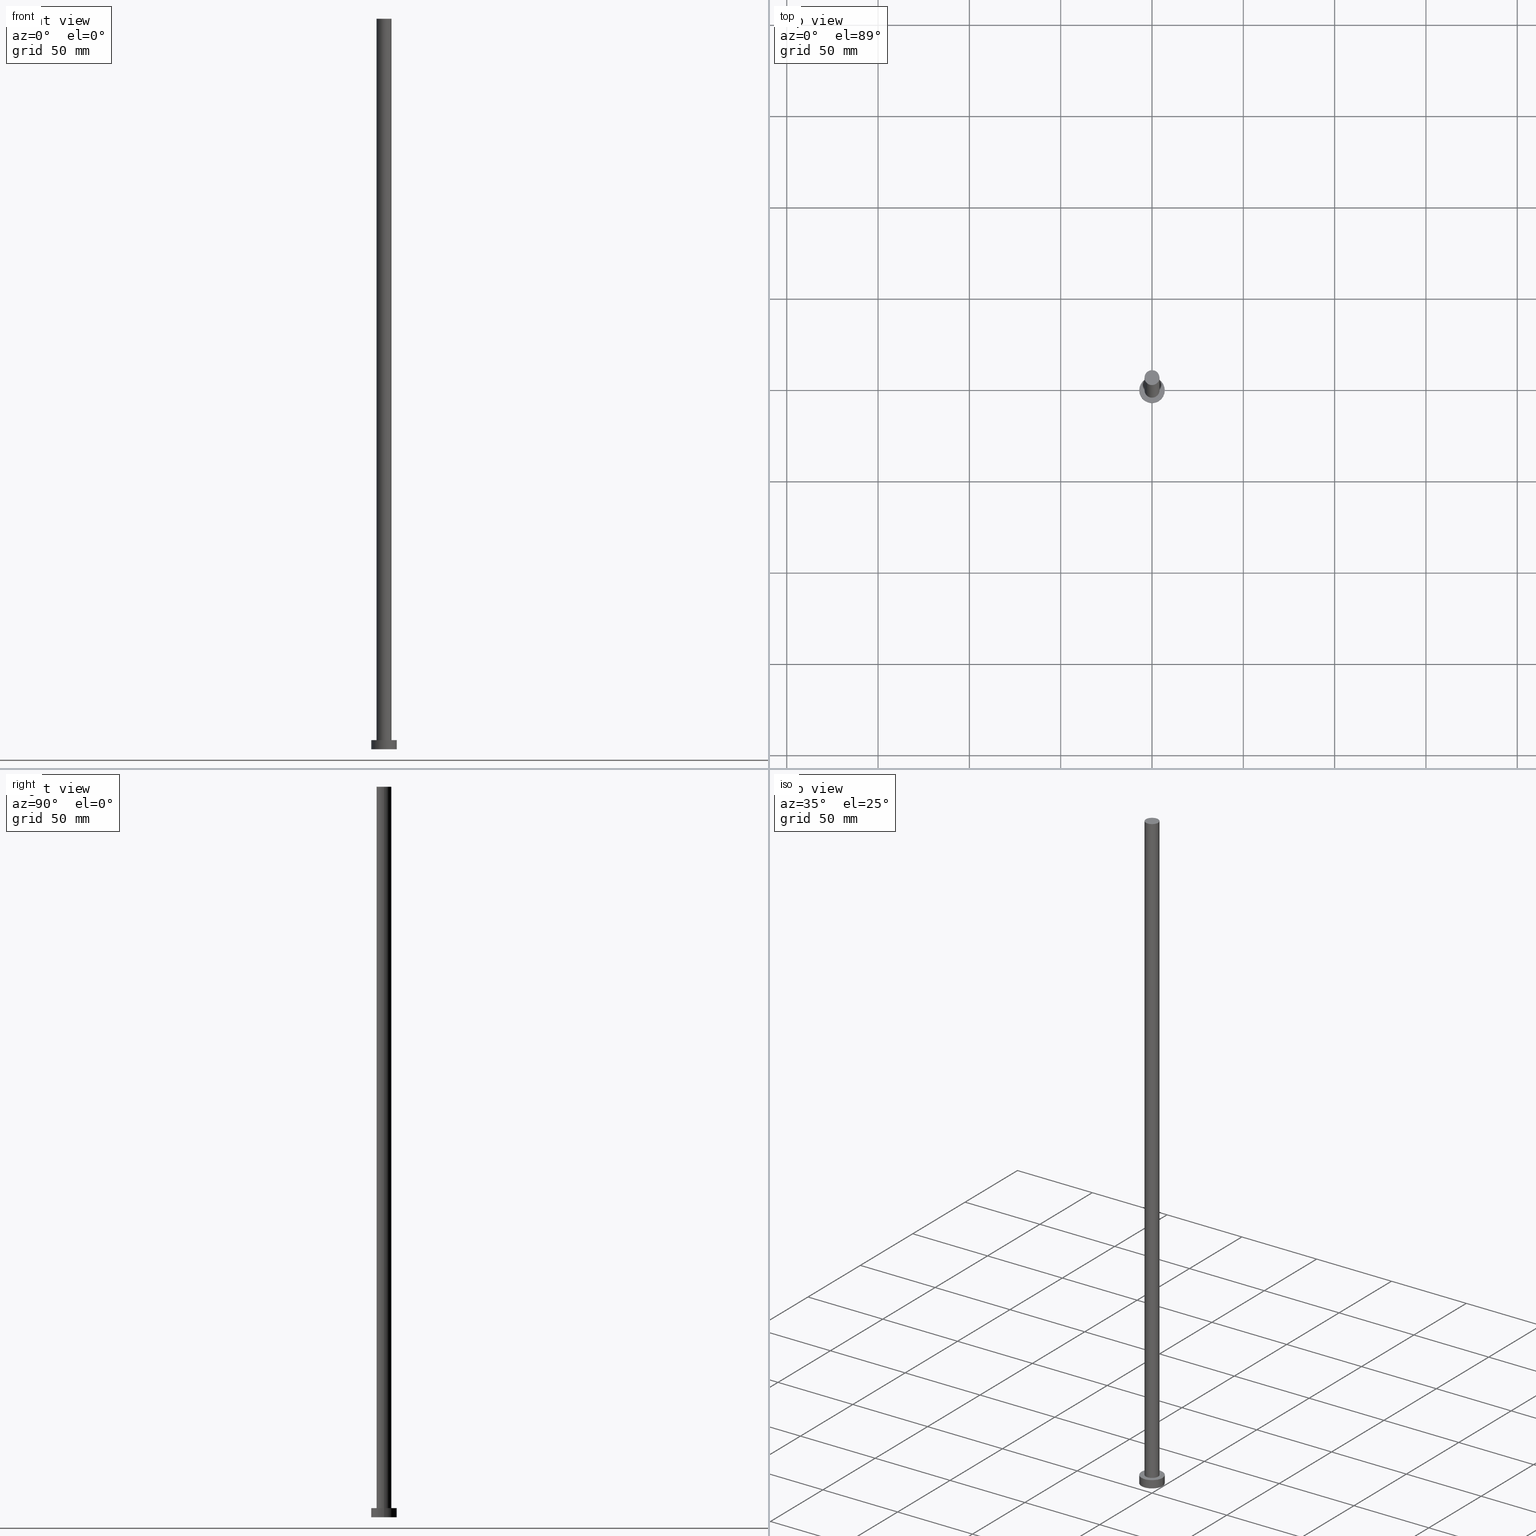
[diagram: canonical four-view strip — front | top / right | iso, engineering-drawing reading convention]
A machine part, canonical four-view strip (front | top / right | iso — engineering-drawing reading convention). The complete STEP part file that produces these views, byte-faithful:
ISO-10303-21;
HEADER;
FILE_DESCRIPTION (( 'STEP AP203' ),
    '1' );
FILE_NAME ('0432.STEP',
    '2023-02-13T10:51:59',
    ( '' ),
    ( '' ),
    'SwSTEP 2.0',
    'SolidWorks 2019',
    '' );
FILE_SCHEMA (( 'CONFIG_CONTROL_DESIGN' ));
ENDSEC;

DATA;
#1 = LINE ( 'NONE', #115, #127 ) ;
#2 = DIRECTION ( 'NONE',  ( 0.000000000000000000, 0.000000000000000000, 1.000000000000000000 ) ) ;
#3 = CARTESIAN_POINT ( 'NONE',  ( 0.000000000000000000, 0.000000000000000000, 0.000000000000000000 ) ) ;
#4 = EDGE_CURVE ( 'NONE', #16, #231, #185, .T. ) ;
#5 = CIRCLE ( 'NONE', #195, 7.000000000000000000 ) ;
#6 = CARTESIAN_POINT ( 'NONE',  ( 0.000000000000000000, 0.000000000000000000, 0.000000000000000000 ) ) ;
#7 = VERTEX_POINT ( 'NONE', #151 ) ;
#8 = DIRECTION ( 'NONE',  ( 0.000000000000000000, 0.000000000000000000, 1.000000000000000000 ) ) ;
#9 = EDGE_CURVE ( 'NONE', #58, #227, #149, .T. ) ;
#10 = CYLINDRICAL_SURFACE ( 'NONE', #218, 4.099999999999999645 ) ;
#11 = AXIS2_PLACEMENT_3D ( 'NONE', #160, #62, #84 ) ;
#12 = DIRECTION ( 'NONE',  ( 1.000000000000000000, 0.000000000000000000, -0.000000000000000000 ) ) ;
#13 = ORIENTED_EDGE ( 'NONE', *, *, #120, .F. ) ;
#14 = DIRECTION ( 'NONE',  ( 0.000000000000000000, 0.000000000000000000, 1.000000000000000000 ) ) ;
#15 = PERSON_AND_ORGANIZATION ( #241, #178 ) ;
#16 = VERTEX_POINT ( 'NONE', #212 ) ;
#17 = CIRCLE ( 'NONE', #98, 4.099999999999999645 ) ;
#18 = FACE_OUTER_BOUND ( 'NONE', #206, .T. ) ;
#19 = LOCAL_TIME ( 11, 51, 59.00000000000000000, #67 ) ;
#20 = DIRECTION ( 'NONE',  ( 0.000000000000000000, 0.000000000000000000, 1.000000000000000000 ) ) ;
#21 =( GEOMETRIC_REPRESENTATION_CONTEXT ( 3 ) GLOBAL_UNCERTAINTY_ASSIGNED_CONTEXT ( ( #55 ) ) GLOBAL_UNIT_ASSIGNED_CONTEXT ( ( #95, #29, #63 ) ) REPRESENTATION_CONTEXT ( 'NONE', 'WORKASPACE' ) );
#22 = CARTESIAN_POINT ( 'NONE',  ( 0.000000000000000000, 0.000000000000000000, 5.000000000000000000 ) ) ;
#23 = DIRECTION ( 'NONE',  ( 1.000000000000000000, 0.000000000000000000, 0.000000000000000000 ) ) ;
#24 = ORIENTED_EDGE ( 'NONE', *, *, #9, .T. ) ;
#25 = CIRCLE ( 'NONE', #137, 7.000000000000000000 ) ;
#26 = EDGE_CURVE ( 'NONE', #16, #58, #79, .T. ) ;
#27 = DIRECTION ( 'NONE',  ( 0.000000000000000000, 0.000000000000000000, 1.000000000000000000 ) ) ;
#28 = DIRECTION ( 'NONE',  ( 1.000000000000000000, 0.000000000000000000, 0.000000000000000000 ) ) ;
#29 =( NAMED_UNIT ( * ) PLANE_ANGLE_UNIT ( ) SI_UNIT ( $, .RADIAN. ) );
#30 = ORIENTED_EDGE ( 'NONE', *, *, #158, .T. ) ;
#31 = CC_DESIGN_APPROVAL ( #191, ( #169 ) ) ;
#32 = PERSON_AND_ORGANIZATION_ROLE ( 'creator' ) ;
#33 = ORIENTED_EDGE ( 'NONE', *, *, #175, .F. ) ;
#34 = EDGE_CURVE ( 'NONE', #225, #7, #5, .T. ) ;
#35 = PERSON_AND_ORGANIZATION_ROLE ( 'design_owner' ) ;
#36 = APPROVAL ( #148, 'NEUR�EN�' ) ;
#37 = DIRECTION ( 'NONE',  ( 1.000000000000000000, 0.000000000000000000, 0.000000000000000000 ) ) ;
#38 = PRODUCT_DEFINITION_SHAPE ( 'NONE', 'NONE',  #169 ) ;
#39 = FACE_BOUND ( 'NONE', #176, .T. ) ;
#40 = AXIS2_PLACEMENT_3D ( 'NONE', #220, #14, #186 ) ;
#41 = DIRECTION ( 'NONE',  ( 1.000000000000000000, 0.000000000000000000, -0.000000000000000000 ) ) ;
#42 = DIRECTION ( 'NONE',  ( -1.000000000000000000, 0.000000000000000000, 0.000000000000000000 ) ) ;
#43 = CARTESIAN_POINT ( 'NONE',  ( 0.000000000000000000, 0.000000000000000000, 5.000000000000000000 ) ) ;
#44 = EDGE_LOOP ( 'NONE', ( #104, #86, #250, #201 ) ) ;
#45 = CARTESIAN_POINT ( 'NONE',  ( 7.000000000000000000, 8.572527594031473190E-16, 5.000000000000000000 ) ) ;
#46 = DIRECTION ( 'NONE',  ( 1.000000000000000000, 0.000000000000000000, -0.000000000000000000 ) ) ;
#47 = COORDINATED_UNIVERSAL_TIME_OFFSET ( 1, 0, .AHEAD. ) ;
#48 = ORIENTED_EDGE ( 'NONE', *, *, #161, .F. ) ;
#49 = PERSON_AND_ORGANIZATION ( #241, #178 ) ;
#50 = PERSON_AND_ORGANIZATION_ROLE ( 'design_supplier' ) ;
#51 = DIRECTION ( 'NONE',  ( -0.000000000000000000, -0.000000000000000000, -1.000000000000000000 ) ) ;
#52 = CC_DESIGN_DATE_AND_TIME_ASSIGNMENT ( #111, #73, ( #240 ) ) ;
#53 = DIRECTION ( 'NONE',  ( 0.000000000000000000, 0.000000000000000000, 1.000000000000000000 ) ) ;
#54 = ADVANCED_FACE ( 'NONE', ( #39, #156 ), #136, .T. ) ;
#55 = UNCERTAINTY_MEASURE_WITH_UNIT (LENGTH_MEASURE( 1.000000000000000082E-05 ), #95, 'distance_accuracy_value', 'NONE');
#56 = DIRECTION ( 'NONE',  ( -0.000000000000000000, -0.000000000000000000, -1.000000000000000000 ) ) ;
#57 = DIRECTION ( 'NONE',  ( -1.000000000000000000, 0.000000000000000000, 0.000000000000000000 ) ) ;
#58 = VERTEX_POINT ( 'NONE', #196 ) ;
#59 = CARTESIAN_POINT ( 'NONE',  ( 0.000000000000000000, 0.000000000000000000, 400.0000000000000000 ) ) ;
#60 = VERTEX_POINT ( 'NONE', #253 ) ;
#61 = VECTOR ( 'NONE', #51, 1000.000000000000000 ) ;
#62 = DIRECTION ( 'NONE',  ( 0.000000000000000000, 0.000000000000000000, 1.000000000000000000 ) ) ;
#63 =( NAMED_UNIT ( * ) SI_UNIT ( $, .STERADIAN. ) SOLID_ANGLE_UNIT ( ) );
#64 = ORIENTED_EDGE ( 'NONE', *, *, #103, .F. ) ;
#65 = PERSON_AND_ORGANIZATION ( #241, #178 ) ;
#66 = CIRCLE ( 'NONE', #159, 4.099999999999999645 ) ;
#67 = COORDINATED_UNIVERSAL_TIME_OFFSET ( 1, 0, .AHEAD. ) ;
#68 = DIRECTION ( 'NONE',  ( -0.000000000000000000, -0.000000000000000000, -1.000000000000000000 ) ) ;
#69 = PRODUCT_RELATED_PRODUCT_CATEGORY ( 'detail', '', ( #72 ) ) ;
#70 = PERSON_AND_ORGANIZATION ( #241, #178 ) ;
#71 = AXIS2_PLACEMENT_3D ( 'NONE', #22, #77, #189 ) ;
#72 = PRODUCT ( '0432', '0432', '', ( #205 ) ) ;
#73 = DATE_TIME_ROLE ( 'classification_date' ) ;
#74 = CC_DESIGN_PERSON_AND_ORGANIZATION_ASSIGNMENT ( #87, #50, ( #118 ) ) ;
#75 = DIRECTION ( 'NONE',  ( -0.000000000000000000, -0.000000000000000000, -1.000000000000000000 ) ) ;
#76 = DESIGN_CONTEXT ( 'detailed design', #142, 'design' ) ;
#77 = DIRECTION ( 'NONE',  ( -0.000000000000000000, -0.000000000000000000, -1.000000000000000000 ) ) ;
#78 = APPLICATION_PROTOCOL_DEFINITION ( 'international standard', 'config_control_design', 1994, #208 ) ;
#79 = CIRCLE ( 'NONE', #237, 4.099999999999999645 ) ;
#80 = ORIENTED_EDGE ( 'NONE', *, *, #181, .T. ) ;
#81 = CC_DESIGN_APPROVAL ( #36, ( #240 ) ) ;
#82 = ORIENTED_EDGE ( 'NONE', *, *, #181, .F. ) ;
#83 = PLANE ( 'NONE',  #232 ) ;
#84 = DIRECTION ( 'NONE',  ( 1.000000000000000000, 0.000000000000000000, 0.000000000000000000 ) ) ;
#85 = AXIS2_PLACEMENT_3D ( 'NONE', #114, #192, #117 ) ;
#86 = ORIENTED_EDGE ( 'NONE', *, *, #26, .F. ) ;
#87 = PERSON_AND_ORGANIZATION ( #241, #178 ) ;
#88 = EDGE_LOOP ( 'NONE', ( #33, #24, #203, #162 ) ) ;
#89 = CLOSED_SHELL ( 'NONE', ( #194, #130, #92, #54, #187, #254, #221 ) ) ;
#90 = CARTESIAN_POINT ( 'NONE',  ( 0.000000000000000000, 0.000000000000000000, 5.000000000000000000 ) ) ;
#91 = DIRECTION ( 'NONE',  ( 0.000000000000000000, 0.000000000000000000, 1.000000000000000000 ) ) ;
#92 = ADVANCED_FACE ( 'NONE', ( #242 ), #222, .T. ) ;
#93 = ADVANCED_BREP_SHAPE_REPRESENTATION ( '0432', ( #140, #40 ), #21 ) ;
#94 = VECTOR ( 'NONE', #199, 1000.000000000000000 ) ;
#95 =( LENGTH_UNIT ( ) NAMED_UNIT ( * ) SI_UNIT ( .MILLI., .METRE. ) );
#96 = CC_DESIGN_PERSON_AND_ORGANIZATION_ASSIGNMENT ( #49, #32, ( #118 ) ) ;
#97 = FACE_OUTER_BOUND ( 'NONE', #126, .T. ) ;
#98 = AXIS2_PLACEMENT_3D ( 'NONE', #226, #27, #102 ) ;
#99 = LOCAL_TIME ( 11, 51, 59.00000000000000000, #109 ) ;
#100 = CARTESIAN_POINT ( 'NONE',  ( -4.099999999999999645, 0.000000000000000000, 5.000000000000000000 ) ) ;
#101 = ORIENTED_EDGE ( 'NONE', *, *, #244, .T. ) ;
#102 = DIRECTION ( 'NONE',  ( 1.000000000000000000, 0.000000000000000000, 0.000000000000000000 ) ) ;
#103 = EDGE_CURVE ( 'NONE', #123, #60, #135, .T. ) ;
#104 = ORIENTED_EDGE ( 'NONE', *, *, #9, .F. ) ;
#105 = LOCAL_TIME ( 11, 51, 59.00000000000000000, #168 ) ;
#106 = CALENDAR_DATE ( 2023, 13, 2 ) ;
#107 = EDGE_LOOP ( 'NONE', ( #80, #164 ) ) ;
#108 = APPROVAL_ROLE ( '' ) ;
#109 = COORDINATED_UNIVERSAL_TIME_OFFSET ( 1, 0, .AHEAD. ) ;
#110 = LOCAL_TIME ( 11, 51, 59.00000000000000000, #47 ) ;
#111 = DATE_AND_TIME ( #184, #154 ) ;
#112 = APPROVAL_ROLE ( '' ) ;
#113 = CC_DESIGN_PERSON_AND_ORGANIZATION_ASSIGNMENT ( #15, #207, ( #240 ) ) ;
#114 = CARTESIAN_POINT ( 'NONE',  ( 0.000000000000000000, 0.000000000000000000, 5.000000000000000000 ) ) ;
#115 = CARTESIAN_POINT ( 'NONE',  ( 7.000000000000000000, 8.572527594031473190E-16, 5.000000000000000000 ) ) ;
#116 = AXIS2_PLACEMENT_3D ( 'NONE', #43, #224, #143 ) ;
#117 = DIRECTION ( 'NONE',  ( -1.000000000000000000, 0.000000000000000000, 0.000000000000000000 ) ) ;
#118 = PRODUCT_DEFINITION_FORMATION_WITH_SPECIFIED_SOURCE ( 'LIBOVOLN�', '', #72, .NOT_KNOWN. ) ;
#119 = DIRECTION ( 'NONE',  ( 0.000000000000000000, 0.000000000000000000, 1.000000000000000000 ) ) ;
#120 = EDGE_CURVE ( 'NONE', #225, #60, #1, .T. ) ;
#121 = FACE_OUTER_BOUND ( 'NONE', #141, .T. ) ;
#122 = CARTESIAN_POINT ( 'NONE',  ( 0.000000000000000000, 0.000000000000000000, 400.0000000000000000 ) ) ;
#123 = VERTEX_POINT ( 'NONE', #157 ) ;
#124 = DIRECTION ( 'NONE',  ( 0.000000000000000000, 0.000000000000000000, 1.000000000000000000 ) ) ;
#125 = CALENDAR_DATE ( 2023, 13, 2 ) ;
#126 = EDGE_LOOP ( 'NONE', ( #64, #248 ) ) ;
#127 = VECTOR ( 'NONE', #75, 1000.000000000000000 ) ;
#128 = APPROVAL_PERSON_ORGANIZATION ( #152, #138, #108 ) ;
#129 = CALENDAR_DATE ( 2023, 13, 2 ) ;
#130 = ADVANCED_FACE ( 'NONE', ( #18 ), #155, .T. ) ;
#131 = PERSON_AND_ORGANIZATION ( #241, #178 ) ;
#132 = DATE_AND_TIME ( #211, #19 ) ;
#133 = CIRCLE ( 'NONE', #11, 4.099999999999999645 ) ;
#134 = SECURITY_CLASSIFICATION_LEVEL ( 'unclassified' ) ;
#135 = CIRCLE ( 'NONE', #204, 7.000000000000000000 ) ;
#136 = PLANE ( 'NONE',  #190 ) ;
#137 = AXIS2_PLACEMENT_3D ( 'NONE', #177, #8, #23 ) ;
#138 = APPROVAL ( #236, 'NEUR�EN�' ) ;
#139 = CARTESIAN_POINT ( 'NONE',  ( 0.000000000000000000, 0.000000000000000000, 5.000000000000000000 ) ) ;
#140 = MANIFOLD_SOLID_BREP ( 'P�idat vysunut�m3', #89 ) ;
#141 = EDGE_LOOP ( 'NONE', ( #229, #180 ) ) ;
#142 = APPLICATION_CONTEXT ( 'configuration controlled 3d designs of mechanical parts and assemblies' ) ;
#143 = DIRECTION ( 'NONE',  ( 1.000000000000000000, 0.000000000000000000, 0.000000000000000000 ) ) ;
#144 = CARTESIAN_POINT ( 'NONE',  ( 0.000000000000000000, 0.000000000000000000, 400.0000000000000000 ) ) ;
#145 = ORIENTED_EDGE ( 'NONE', *, *, #34, .F. ) ;
#146 = DATE_AND_TIME ( #129, #99 ) ;
#147 = CC_DESIGN_PERSON_AND_ORGANIZATION_ASSIGNMENT ( #70, #249, ( #169 ) ) ;
#148 = APPROVAL_STATUS ( 'not_yet_approved' ) ;
#149 = LINE ( 'NONE', #235, #61 ) ;
#150 = DATE_TIME_ROLE ( 'creation_date' ) ;
#151 = CARTESIAN_POINT ( 'NONE',  ( -7.000000000000000000, 0.000000000000000000, 5.000000000000000000 ) ) ;
#152 = PERSON_AND_ORGANIZATION ( #241, #178 ) ;
#153 = CARTESIAN_POINT ( 'NONE',  ( -4.099999999999999645, 0.000000000000000000, 400.0000000000000000 ) ) ;
#154 = LOCAL_TIME ( 11, 51, 59.00000000000000000, #170 ) ;
#155 = CYLINDRICAL_SURFACE ( 'NONE', #71, 7.000000000000000000 ) ;
#156 = FACE_OUTER_BOUND ( 'NONE', #107, .T. ) ;
#157 = CARTESIAN_POINT ( 'NONE',  ( -7.000000000000000000, 0.000000000000000000, 0.000000000000000000 ) ) ;
#158 = EDGE_CURVE ( 'NONE', #7, #123, #171, .T. ) ;
#159 = AXIS2_PLACEMENT_3D ( 'NONE', #139, #124, #28 ) ;
#160 = CARTESIAN_POINT ( 'NONE',  ( 0.000000000000000000, 0.000000000000000000, 400.0000000000000000 ) ) ;
#161 = EDGE_CURVE ( 'NONE', #231, #227, #17, .T. ) ;
#162 = ORIENTED_EDGE ( 'NONE', *, *, #4, .F. ) ;
#163 = FACE_OUTER_BOUND ( 'NONE', #44, .T. ) ;
#164 = ORIENTED_EDGE ( 'NONE', *, *, #34, .T. ) ;
#165 = APPROVAL_STATUS ( 'not_yet_approved' ) ;
#166 = PERSON_AND_ORGANIZATION ( #241, #178 ) ;
#167 = AXIS2_PLACEMENT_3D ( 'NONE', #59, #247, #57 ) ;
#168 = COORDINATED_UNIVERSAL_TIME_OFFSET ( 1, 0, .AHEAD. ) ;
#169 = PRODUCT_DEFINITION ( 'NEZN�M�', '', #118, #76 ) ;
#170 = COORDINATED_UNIVERSAL_TIME_OFFSET ( 1, 0, .AHEAD. ) ;
#171 = LINE ( 'NONE', #243, #94 ) ;
#172 = CC_DESIGN_PERSON_AND_ORGANIZATION_ASSIGNMENT ( #65, #35, ( #72 ) ) ;
#173 = DIRECTION ( 'NONE',  ( 1.000000000000000000, 0.000000000000000000, 0.000000000000000000 ) ) ;
#174 = APPROVAL_PERSON_ORGANIZATION ( #166, #36, #255 ) ;
#175 = EDGE_CURVE ( 'NONE', #58, #16, #133, .T. ) ;
#176 = EDGE_LOOP ( 'NONE', ( #48, #200 ) ) ;
#177 = CARTESIAN_POINT ( 'NONE',  ( 0.000000000000000000, 0.000000000000000000, 0.000000000000000000 ) ) ;
#178 = ORGANIZATION ( 'NEUR�EN�', 'NEUR�EN�', '' ) ;
#179 = PLANE ( 'NONE',  #215 ) ;
#180 = ORIENTED_EDGE ( 'NONE', *, *, #175, .T. ) ;
#181 = EDGE_CURVE ( 'NONE', #7, #225, #239, .T. ) ;
#182 = APPROVAL_DATE_TIME ( #193, #191 ) ;
#183 = ORIENTED_EDGE ( 'NONE', *, *, #158, .F. ) ;
#184 = CALENDAR_DATE ( 2023, 13, 2 ) ;
#185 = LINE ( 'NONE', #153, #251 ) ;
#186 = DIRECTION ( 'NONE',  ( 1.000000000000000000, 0.000000000000000000, 0.000000000000000000 ) ) ;
#187 = ADVANCED_FACE ( 'NONE', ( #97 ), #83, .F. ) ;
#188 = DATE_AND_TIME ( #125, #110 ) ;
#189 = DIRECTION ( 'NONE',  ( -1.000000000000000000, 0.000000000000000000, 0.000000000000000000 ) ) ;
#190 = AXIS2_PLACEMENT_3D ( 'NONE', #90, #20, #41 ) ;
#191 = APPROVAL ( #165, 'NEUR�EN�' ) ;
#192 = DIRECTION ( 'NONE',  ( -0.000000000000000000, -0.000000000000000000, -1.000000000000000000 ) ) ;
#193 = DATE_AND_TIME ( #106, #105 ) ;
#194 = ADVANCED_FACE ( 'NONE', ( #230 ), #10, .T. ) ;
#195 = AXIS2_PLACEMENT_3D ( 'NONE', #238, #2, #37 ) ;
#196 = CARTESIAN_POINT ( 'NONE',  ( 4.099999999999999645, 5.021051876504146399E-16, 400.0000000000000000 ) ) ;
#197 = CARTESIAN_POINT ( 'NONE',  ( 4.099999999999999645, 5.021051876504146399E-16, 5.000000000000000000 ) ) ;
#198 = ORIENTED_EDGE ( 'NONE', *, *, #103, .T. ) ;
#199 = DIRECTION ( 'NONE',  ( -0.000000000000000000, -0.000000000000000000, -1.000000000000000000 ) ) ;
#200 = ORIENTED_EDGE ( 'NONE', *, *, #202, .F. ) ;
#201 = ORIENTED_EDGE ( 'NONE', *, *, #161, .T. ) ;
#202 = EDGE_CURVE ( 'NONE', #227, #231, #66, .T. ) ;
#203 = ORIENTED_EDGE ( 'NONE', *, *, #202, .T. ) ;
#204 = AXIS2_PLACEMENT_3D ( 'NONE', #3, #91, #173 ) ;
#205 = MECHANICAL_CONTEXT ( 'NONE', #208, 'mechanical' ) ;
#206 = EDGE_LOOP ( 'NONE', ( #145, #245, #101, #183 ) ) ;
#207 = PERSON_AND_ORGANIZATION_ROLE ( 'classification_officer' ) ;
#208 = APPLICATION_CONTEXT ( 'configuration controlled 3d designs of mechanical parts and assemblies' ) ;
#209 = EDGE_LOOP ( 'NONE', ( #13, #82, #30, #198 ) ) ;
#210 = CC_DESIGN_DATE_AND_TIME_ASSIGNMENT ( #146, #150, ( #169 ) ) ;
#211 = CALENDAR_DATE ( 2023, 13, 2 ) ;
#212 = CARTESIAN_POINT ( 'NONE',  ( -4.099999999999999645, 0.000000000000000000, 400.0000000000000000 ) ) ;
#213 = SHAPE_DEFINITION_REPRESENTATION ( #38, #93 ) ;
#214 = CARTESIAN_POINT ( 'NONE',  ( 0.000000000000000000, 0.000000000000000000, 400.0000000000000000 ) ) ;
#215 = AXIS2_PLACEMENT_3D ( 'NONE', #144, #119, #12 ) ;
#216 = CC_DESIGN_APPROVAL ( #138, ( #118 ) ) ;
#217 = DIRECTION ( 'NONE',  ( 1.000000000000000000, 0.000000000000000000, 0.000000000000000000 ) ) ;
#218 = AXIS2_PLACEMENT_3D ( 'NONE', #122, #56, #42 ) ;
#219 = CC_DESIGN_SECURITY_CLASSIFICATION ( #240, ( #118 ) ) ;
#220 = CARTESIAN_POINT ( 'NONE',  ( 0.000000000000000000, 0.000000000000000000, 0.000000000000000000 ) ) ;
#221 = ADVANCED_FACE ( 'NONE', ( #121 ), #179, .T. ) ;
#222 = CYLINDRICAL_SURFACE ( 'NONE', #85, 7.000000000000000000 ) ;
#223 = APPROVAL_PERSON_ORGANIZATION ( #131, #191, #112 ) ;
#224 = DIRECTION ( 'NONE',  ( 0.000000000000000000, 0.000000000000000000, 1.000000000000000000 ) ) ;
#225 = VERTEX_POINT ( 'NONE', #45 ) ;
#226 = CARTESIAN_POINT ( 'NONE',  ( 0.000000000000000000, 0.000000000000000000, 5.000000000000000000 ) ) ;
#227 = VERTEX_POINT ( 'NONE', #197 ) ;
#228 = DIRECTION ( 'NONE',  ( 0.000000000000000000, 0.000000000000000000, 1.000000000000000000 ) ) ;
#229 = ORIENTED_EDGE ( 'NONE', *, *, #26, .T. ) ;
#230 = FACE_OUTER_BOUND ( 'NONE', #88, .T. ) ;
#231 = VERTEX_POINT ( 'NONE', #100 ) ;
#232 = AXIS2_PLACEMENT_3D ( 'NONE', #6, #228, #46 ) ;
#233 = APPROVAL_DATE_TIME ( #132, #138 ) ;
#234 = APPROVAL_DATE_TIME ( #188, #36 ) ;
#235 = CARTESIAN_POINT ( 'NONE',  ( 4.099999999999999645, 5.021051876504146399E-16, 400.0000000000000000 ) ) ;
#236 = APPROVAL_STATUS ( 'not_yet_approved' ) ;
#237 = AXIS2_PLACEMENT_3D ( 'NONE', #214, #53, #217 ) ;
#238 = CARTESIAN_POINT ( 'NONE',  ( 0.000000000000000000, 0.000000000000000000, 5.000000000000000000 ) ) ;
#239 = CIRCLE ( 'NONE', #116, 7.000000000000000000 ) ;
#240 = SECURITY_CLASSIFICATION ( '', '', #134 ) ;
#241 = PERSON ( 'NEUR�EN�', 'NEUR�EN�', 'NEUR�EN�', ('NEUR�EN�'), ('NEUR�EN�'), ('NEUR�EN�') ) ;
#242 = FACE_OUTER_BOUND ( 'NONE', #209, .T. ) ;
#243 = CARTESIAN_POINT ( 'NONE',  ( -7.000000000000000000, 0.000000000000000000, 5.000000000000000000 ) ) ;
#244 = EDGE_CURVE ( 'NONE', #60, #123, #25, .T. ) ;
#245 = ORIENTED_EDGE ( 'NONE', *, *, #120, .T. ) ;
#246 = CYLINDRICAL_SURFACE ( 'NONE', #167, 4.099999999999999645 ) ;
#247 = DIRECTION ( 'NONE',  ( -0.000000000000000000, -0.000000000000000000, -1.000000000000000000 ) ) ;
#248 = ORIENTED_EDGE ( 'NONE', *, *, #244, .F. ) ;
#249 = PERSON_AND_ORGANIZATION_ROLE ( 'creator' ) ;
#250 = ORIENTED_EDGE ( 'NONE', *, *, #4, .T. ) ;
#251 = VECTOR ( 'NONE', #68, 1000.000000000000000 ) ;
#252 = APPLICATION_PROTOCOL_DEFINITION ( 'international standard', 'config_control_design', 1994, #142 ) ;
#253 = CARTESIAN_POINT ( 'NONE',  ( 7.000000000000000000, 8.572527594031473190E-16, 0.000000000000000000 ) ) ;
#254 = ADVANCED_FACE ( 'NONE', ( #163 ), #246, .T. ) ;
#255 = APPROVAL_ROLE ( '' ) ;
ENDSEC;
END-ISO-10303-21;
